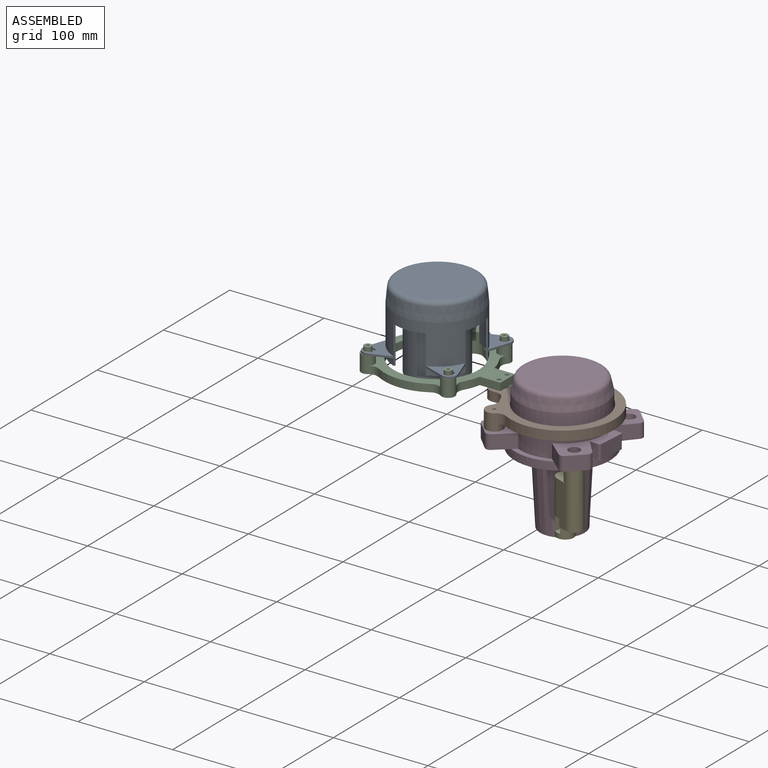
[diagram: assembled view]
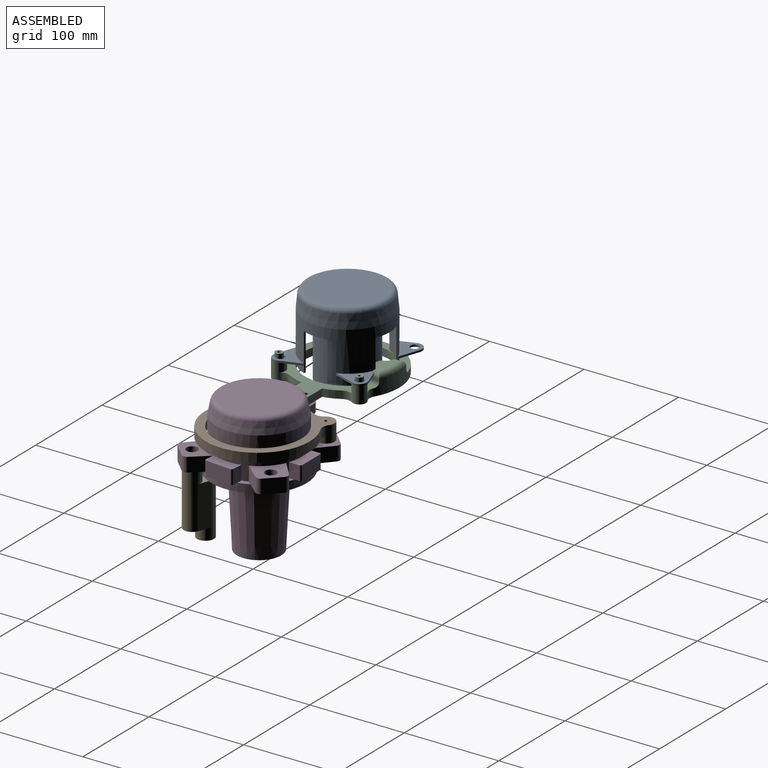
[diagram: assembled view, second angle]
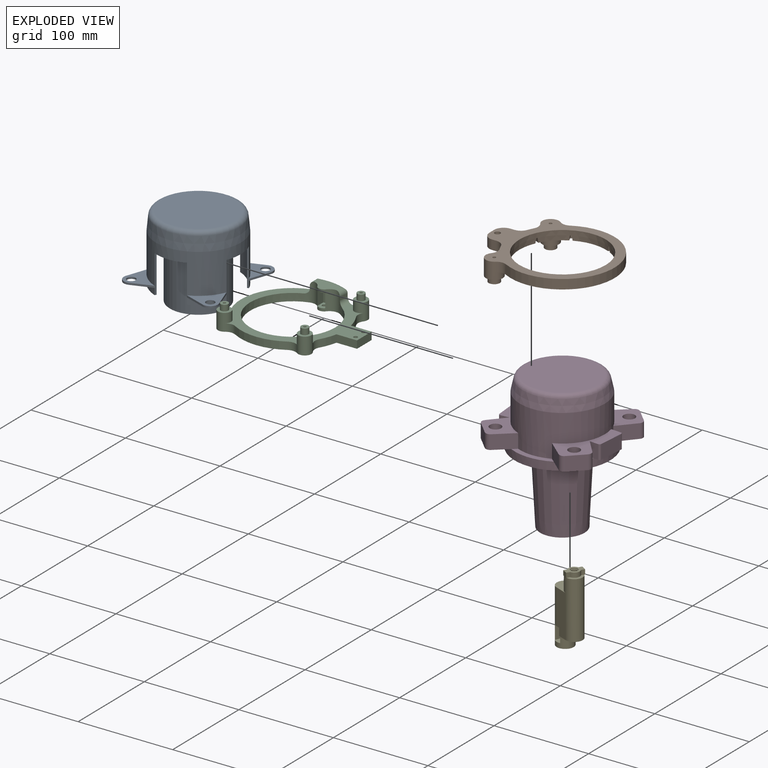
[diagram: exploded view]
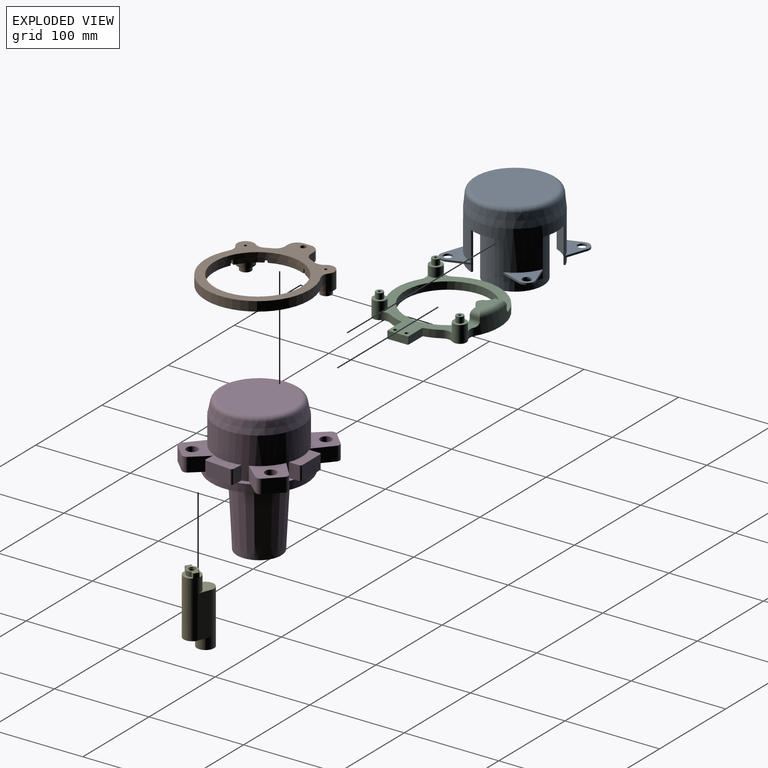
[diagram: exploded view, second angle]
ASSEMBLY  parts=5 mates=3
PART A: 51 faces, bbox 99.6x99.6x86 mm
  f0: cylinder r=45mm len=90mm, axis (0,0,-1), area 7522.3mm2, adj f4,f7,f12,f13,f16,f17,f19,f21
  f1: cylinder r=45mm len=24.51mm, axis (0,0,-1), area 249.1mm2, adj f19,f21,f22,f46
  f2: cylinder r=45mm len=24.51mm, axis (0,0,-1), area 249.1mm2, adj f23,f25,f26,f40
  f3: cylinder r=45mm len=24.51mm, axis (0,0,-1), area 249.1mm2, adj f16,f17,f18,f34
  f4: plane 90x90mm, normal (0,0,-1), area 3235.3mm2, adj f0,f9,f11,f12,f13,f15,f16,f17
  f5: cylinder r=45mm len=24.51mm, axis (0,0,-1), area 249.1mm2, adj f12,f13,f14,f28
  f6: plane 77.08x77.08mm, normal (0,0,1), area 4666.5mm2, adj f8
  f7: cone r=45mm half-angle=5.8deg, axis (0,0,-1), area 4055.8mm2, adj f0,f8
  f8: torus R=38.54mm, axis (0,0,1), area 1919.5mm2, adj f6,f7
  f9: cylinder r=30.16mm len=60.32mm, axis (0,0,1), area 10612mm2, adj f4,f10
  f10: plane 60.32x60.32mm, normal (0,0,-1), area 2857.7mm2, adj f9
  f11: cylinder r=43.71mm len=40mm, axis (0,0,1), area 1362.3mm2, adj f4,f12,f13,f14
  f12: plane 40x1.66mm, normal (-0.38,0.92,0), area 71.7mm2, adj f0,f4,f5,f11,f14,f31
  f13: plane 40x1.85mm, normal (0.92,-0.38,0), area 80mm2, adj f0,f4,f5,f11,f14,f29
  f14: plane 25.27x25.19mm, normal (0,0,-1), area 67.2mm2, adj f5,f11,f12,f13
  f15: cylinder r=43.71mm len=40mm, axis (0,0,1), area 1362.3mm2, adj f4,f16,f17,f18
  f16: plane 40x1.66mm, normal (-0.92,-0.38,0), area 71.7mm2, adj f0,f3,f4,f15,f18,f37
  f17: plane 40x1.85mm, normal (0.38,0.92,0), area 80mm2, adj f0,f3,f4,f15,f18,f35
  f18: plane 25.27x25.19mm, normal (0,0,-1), area 67.2mm2, adj f3,f15,f16,f17
  f19: plane 40x1.85mm, normal (-0.38,-0.92,0), area 80mm2, adj f0,f1,f4,f20,f22,f47
  f20: cylinder r=43.71mm len=40mm, axis (0,0,1), area 1362.3mm2, adj f4,f19,f21,f22
  f21: plane 40x1.66mm, normal (0.92,0.38,0), area 71.7mm2, adj f0,f1,f4,f20,f22,f49
  f22: plane 25.27x25.19mm, normal (0,0,-1), area 67.2mm2, adj f1,f19,f20,f21
  f23: plane 40x1.85mm, normal (-0.92,0.38,0), area 80mm2, adj f0,f2,f4,f24,f26,f41
  f24: cylinder r=43.71mm len=40mm, axis (0,0,1), area 1362.3mm2, adj f4,f23,f25,f26
  f25: plane 40x1.66mm, normal (0.38,-0.92,0), area 71.7mm2, adj f0,f2,f4,f24,f26,f43
  f26: plane 25.27x25.19mm, normal (0,0,-1), area 67.2mm2, adj f2,f23,f24,f25
  f27: plane 32.7x32.6mm, normal (0,0,1), area 417.5mm2, adj f0,f29,f30,f31,f32
  f28: plane 32.7x32.6mm, normal (0,0,-1), area 417.5mm2, adj f5,f29,f30,f31,f32
  f29: plane 21.94x7.73mm, normal (0.33,-0.94,0), area 46.5mm2, adj f13,f27,f28,f30
  f30: cylinder r=8mm len=10.66mm, axis (0,0,-1), area 35.9mm2, adj f27,f28,f29,f31
  f31: plane 22.08x7.65mm, normal (-0.94,0.33,0), area 46.7mm2, adj f12,f27,f28,f30
  f32: cylinder r=4.5mm len=9mm, axis (0,0,-1), area 56.5mm2, adj f27,f28
  f33: plane 32.7x32.6mm, normal (0,0,1), area 417.5mm2, adj f0,f35,f36,f37,f38
  f34: plane 32.7x32.6mm, normal (0,0,-1), area 417.5mm2, adj f3,f35,f36,f37,f38
  f35: plane 21.94x7.73mm, normal (0.94,0.33,0), area 46.5mm2, adj f17,f33,f34,f36
  f36: cylinder r=8mm len=10.66mm, axis (0,0,-1), area 35.9mm2, adj f33,f34,f35,f37
  f37: plane 22.08x7.65mm, normal (-0.33,-0.94,0), area 46.7mm2, adj f16,f33,f34,f36
  f38: cylinder r=4.5mm len=9mm, axis (0,0,-1), area 56.5mm2, adj f33,f34
  f39: plane 32.7x32.6mm, normal (0,0,1), area 417.5mm2, adj f0,f41,f42,f43,f44
  f40: plane 32.7x32.6mm, normal (0,0,-1), area 417.5mm2, adj f2,f41,f42,f43,f44
  f41: plane 21.94x7.73mm, normal (-0.33,0.94,0), area 46.5mm2, adj f23,f39,f40,f42
  f42: cylinder r=8mm len=10.66mm, axis (0,0,-1), area 35.9mm2, adj f39,f40,f41,f43
  f43: plane 22.08x7.65mm, normal (0.94,-0.33,0), area 46.7mm2, adj f25,f39,f40,f42
  f44: cylinder r=4.5mm len=9mm, axis (0,0,-1), area 56.5mm2, adj f39,f40
  f45: plane 32.7x32.6mm, normal (0,0,1), area 417.5mm2, adj f0,f47,f48,f49,f50
  f46: plane 32.7x32.6mm, normal (0,0,-1), area 417.5mm2, adj f1,f47,f48,f49,f50
  f47: plane 21.94x7.73mm, normal (-0.94,-0.33,0), area 46.5mm2, adj f19,f45,f46,f48
  f48: cylinder r=8mm len=10.66mm, axis (0,0,-1), area 35.9mm2, adj f45,f46,f47,f49
  f49: plane 22.08x7.65mm, normal (0.33,0.94,0), area 46.7mm2, adj f21,f45,f46,f48
  f50: cylinder r=4.5mm len=9mm, axis (0,0,-1), area 56.5mm2, adj f45,f46
PART B: 60 faces, bbox 130x110x23 mm
  f0: cone r=46mm half-angle=2deg, axis (0,0,-1), area 2796.3mm2, adj f1,f11,f20,f22,f23,f24,f26,f27
  f1: plane 129.97x110mm, normal (0,0,-1), area 3238.3mm2, adj f0,f2,f3,f4,f5,f6,f7,f8
  f2: plane 10x4.43mm, normal (0,-1,0), area 44.3mm2, adj f1,f11,f14,f15
  f3: cylinder r=55mm len=10mm, axis (0,0,-1), area 64.8mm2, adj f1,f11,f15,f16
  f4: cylinder r=9mm len=18mm, axis (0,0,-1), area 687mm2, adj f1,f11,f16,f17,f52
  f5: cylinder r=55mm len=110mm, axis (0,0,-1), area 2267.6mm2, adj f1,f11,f17,f18
  f6: cylinder r=9mm len=18mm, axis (0,0,-1), area 687mm2, adj f1,f11,f18,f19,f53
  f7: cylinder r=55mm len=10mm, axis (0,0,-1), area 64.8mm2, adj f1,f11,f12,f19
  f8: plane 10x4.43mm, normal (0,1,0), area 44.3mm2, adj f1,f11,f12,f13
  f9: plane 10x7.34mm, normal (-1,0,0), area 73.4mm2, adj f1,f11,f13,f14
  f10: cylinder r=3mm len=10mm, axis (0,0,-1), area 188.5mm2, adj f1,f11
  f11: plane 129.97x110mm, normal (0,0,1), area 3939.4mm2, adj f0,f2,f3,f4,f5,f6,f7,f8
  f12: cylinder r=10mm len=10mm, axis (0,0,-1), area 119.8mm2, adj f1,f7,f8,f11
  f13: cylinder r=10mm len=10mm, axis (0,0,-1), area 157.1mm2, adj f1,f8,f9,f11
  f14: cylinder r=10mm len=10mm, axis (0,0,1), area 157.1mm2, adj f1,f2,f9,f11
  f15: cylinder r=10mm len=10mm, axis (0,0,-1), area 119.8mm2, adj f1,f2,f3,f11
  f16: cylinder r=10mm len=10.96mm, axis (0,0,1), area 116.6mm2, adj f1,f3,f4,f11
  f17: cylinder r=10mm len=10.96mm, axis (0,0,1), area 116.6mm2, adj f1,f4,f5,f11
  f18: cylinder r=10mm len=10.96mm, axis (0,0,1), area 116.6mm2, adj f1,f5,f6,f11
  f19: cylinder r=10mm len=10.96mm, axis (0,0,1), area 116.6mm2, adj f1,f6,f7,f11
  f20: plane 5x4.44mm, normal (-0.43,0.89,-0.17), area 23.2mm2, adj f0,f1,f21,f23
  f21: plane 5x2.7mm, normal (0.9,0.44,0), area 10.6mm2, adj f1,f20,f22,f23
  f22: plane 5x4.58mm, normal (0.43,-0.89,-0.17), area 23.2mm2, adj f0,f1,f21,f23
  f23: plane 4.73x3.15mm, normal (0,0,-1), area 5.8mm2, adj f0,f20,f21,f22
  f24: plane 5x4.58mm, normal (0.43,0.89,-0.17), area 23.2mm2, adj f0,f1,f25,f27
  f25: plane 5x2.7mm, normal (0.9,-0.44,0), area 10.6mm2, adj f1,f24,f26,f27
  f26: plane 5x4.44mm, normal (-0.43,-0.89,-0.17), area 23.2mm2, adj f0,f1,f25,f27
  f27: plane 4.73x3.15mm, normal (0,0,-1), area 5.8mm2, adj f0,f24,f25,f26
  f28: plane 5x4.44mm, normal (0.89,0.43,-0.17), area 23.2mm2, adj f0,f1,f29,f31
  f29: plane 5x2.7mm, normal (0.44,-0.9,0), area 10.6mm2, adj f1,f28,f30,f31
  f30: plane 5x4.58mm, normal (-0.89,-0.43,-0.17), area 23.2mm2, adj f0,f1,f29,f31
  f31: plane 4.73x3.15mm, normal (0,0,-1), area 5.8mm2, adj f0,f28,f29,f30
  f32: plane 5x4.58mm, normal (0.89,-0.43,-0.17), area 23.2mm2, adj f0,f1,f33,f35
  f33: plane 5x2.7mm, normal (-0.44,-0.9,0), area 10.6mm2, adj f1,f32,f34,f35
  f34: plane 5x4.44mm, normal (-0.89,0.43,-0.17), area 23.2mm2, adj f0,f1,f33,f35
  f35: plane 4.73x3.15mm, normal (0,0,-1), area 5.8mm2, adj f0,f32,f33,f34
  f36: plane 5x4.44mm, normal (0.43,-0.89,-0.17), area 23.2mm2, adj f0,f1,f37,f39
  f37: plane 5x2.7mm, normal (-0.9,-0.44,0), area 10.6mm2, adj f1,f36,f38,f39
  f38: plane 5x4.58mm, normal (-0.43,0.89,-0.17), area 23.2mm2, adj f0,f1,f37,f39
  f39: plane 4.73x3.15mm, normal (0,0,-1), area 5.8mm2, adj f0,f36,f37,f38
  f40: plane 5x4.58mm, normal (-0.43,-0.89,-0.17), area 23.2mm2, adj f0,f1,f41,f43
  f41: plane 5x2.7mm, normal (-0.9,0.44,0), area 10.6mm2, adj f1,f40,f42,f43
  f42: plane 5x4.44mm, normal (0.43,0.89,-0.17), area 23.2mm2, adj f0,f1,f41,f43
  f43: plane 4.73x3.15mm, normal (0,0,-1), area 5.8mm2, adj f0,f40,f41,f42
  f44: plane 5x4.44mm, normal (-0.89,-0.43,-0.17), area 23.2mm2, adj f0,f1,f45,f47
  f45: plane 5x2.7mm, normal (-0.44,0.9,0), area 10.6mm2, adj f1,f44,f46,f47
  f46: plane 5x4.58mm, normal (0.89,0.43,-0.17), area 23.2mm2, adj f0,f1,f45,f47
  f47: plane 4.73x3.15mm, normal (0,0,-1), area 5.8mm2, adj f0,f44,f45,f46
  f48: plane 5x4.58mm, normal (-0.89,0.43,-0.17), area 23.2mm2, adj f0,f1,f49,f51
  f49: plane 5x2.7mm, normal (0.44,0.9,0), area 10.6mm2, adj f1,f48,f50,f51
  f50: plane 5x4.44mm, normal (0.89,-0.43,-0.17), area 23.2mm2, adj f0,f1,f49,f51
  f51: plane 4.73x3.15mm, normal (0,0,-1), area 5.8mm2, adj f0,f48,f49,f50
  f52: plane 18x18mm, normal (0,0,-1), area 145.1mm2, adj f4,f54
  f53: plane 18x18mm, normal (0,0,-1), area 145.1mm2, adj f6,f56
  f54: cylinder r=5.9mm len=11.8mm, axis (0,0,1), area 203.9mm2, adj f52,f55
  f55: plane 11.8x11.8mm, normal (0,0,-1), area 101.3mm2, adj f54,f59
  f56: cylinder r=5.9mm len=11.8mm, axis (0,0,1), area 203.9mm2, adj f53,f57
  f57: plane 11.8x11.8mm, normal (0,0,-1), area 101.3mm2, adj f56,f58
  f58: cylinder r=1.6mm len=23mm, axis (0,0,1), area 231.2mm2, adj f11,f57
  f59: cylinder r=1.6mm len=23mm, axis (0,0,1), area 231.2mm2, adj f11,f55
PART C: 53 faces, bbox 130.7x114.5x24.3 mm
  f0: cylinder r=55mm len=16.53mm, axis (0,0,-1), area 142mm2, adj f19,f20,f23,f52
  f1: cylinder r=6mm len=21mm, axis (0,0,-1), area 118.2mm2, adj f19,f27,f28,f31,f32,f33,f34,f36
  f2: cylinder r=2.1mm len=4.2mm, axis (0,0,-1), area 39.6mm2, adj f19,f34
  f3: cylinder r=4mm len=8mm, axis (0,0,1), area 158.3mm2, adj f4,f6
  f4: plane 8x8mm, normal (0,0,-1), area 43.2mm2, adj f3,f47
  f5: cylinder r=7mm len=18mm, axis (0,0,-1), area 597.9mm2, adj f6,f19,f20,f21,f22
  f6: plane 14x14mm, normal (0,0,-1), area 103.7mm2, adj f3,f5
  f7: cylinder r=4mm len=8mm, axis (0,0,1), area 158.3mm2, adj f8,f10
  f8: plane 8x8mm, normal (0,0,-1), area 43.2mm2, adj f7,f45
  f9: cylinder r=7mm len=18mm, axis (0,0,-1), area 597.9mm2, adj f10,f19,f20,f23,f24
  f10: plane 14x14mm, normal (0,0,-1), area 103.7mm2, adj f7,f9
  f11: cylinder r=4mm len=8mm, axis (0,0,1), area 158.3mm2, adj f12,f14
  f12: plane 8x8mm, normal (0,0,-1), area 43.2mm2, adj f11,f43
  f13: cylinder r=7mm len=18mm, axis (0,0,-1), area 597.9mm2, adj f14,f19,f20,f25,f26
  f14: plane 14x14mm, normal (0,0,-1), area 103.7mm2, adj f11,f13
  f15: cylinder r=45mm len=90mm, axis (0,0,-1), area 1985mm2, adj f19,f20,f27,f28,f37,f38
  f16: cylinder r=55mm len=16.53mm, axis (0,0,-1), area 142mm2, adj f19,f20,f22,f48
  f17: cylinder r=55mm len=55.06mm, axis (0,0,-1), area 461.3mm2, adj f19,f20,f24,f25
  f18: cylinder r=55mm len=82.53mm, axis (0,0,-1), area 1453.9mm2, adj f19,f20,f21,f26,f29,f30,f37,f38
  f19: plane 130.7x110mm, normal (0,0,1), area 4237mm2, adj f0,f1,f2,f5,f9,f13,f15,f16
  f20: plane 130.7x107.2mm, normal (0,0,-1), area 3166.4mm2, adj f0,f5,f9,f13,f15,f16,f17,f18
  f21: cylinder r=10mm len=10.87mm, axis (0,0,1), area 92.1mm2, adj f5,f18,f19,f20,f38
  f22: cylinder r=10mm len=10.87mm, axis (0,0,1), area 92mm2, adj f5,f16,f19,f20
  f23: cylinder r=10mm len=10.87mm, axis (0,0,1), area 92mm2, adj f0,f9,f19,f20
  f24: cylinder r=10mm len=10.87mm, axis (0,0,1), area 92mm2, adj f9,f17,f19,f20
  f25: cylinder r=10mm len=10.87mm, axis (0,0,1), area 92mm2, adj f13,f17,f19,f20
  f26: cylinder r=10mm len=10.87mm, axis (0,0,1), area 92mm2, adj f13,f18,f19,f20
  f27: cylinder r=10mm len=21mm, axis (0,0,-1), area 293.2mm2, adj f1,f15,f19,f30,f31,f41
  f28: cylinder r=10mm len=21mm, axis (0,0,-1), area 293.5mm2, adj f1,f15,f19,f29,f31,f39
  f29: plane 10.32x3mm, normal (1,0,0), area 31mm2, adj f18,f28,f37,f39
  f30: plane 10.96x3mm, normal (-1,-0.05,0), area 32.9mm2, adj f18,f27,f38,f41
  f31: plane 25.24x15.75mm, normal (0,0,-1), area 276.6mm2, adj f1,f27,f28,f39,f40,f41
  f32: plane 15x9.04mm, normal (1,0,0), area 135.5mm2, adj f1,f34,f35,f36
  f33: plane 15x9.04mm, normal (-1,0,0), area 135.5mm2, adj f1,f34,f35,f36
  f34: plane 10.75x8.4mm, normal (0,0,-1), area 72mm2, adj f1,f2,f32,f33,f35
  f35: plane 15x8.4mm, normal (0,-1,0), area 126mm2, adj f32,f33,f34,f36
  f36: plane 10.75x8.4mm, normal (0,0,1), area 85.8mm2, adj f1,f32,f33,f35
  f37: cylinder r=5mm len=12.07mm, axis (0,1,0), area 82mm2, adj f15,f18,f20,f29
  f38: cylinder r=5mm len=14.2mm, axis (0.05,-1,0), area 88mm2, adj f15,f18,f20,f21,f30
  f39: cylinder r=5mm len=10.32mm, axis (0,-1,0), area 67.7mm2, adj f28,f29,f31,f40
  f40: torus R=50mm, axis (0,0,1), area 254.5mm2, adj f18,f31,f39,f41
  f41: cylinder r=5mm len=11.22mm, axis (-0.05,1,0), area 71.8mm2, adj f27,f30,f31,f40
  f42: cone r=0mm half-angle=59deg, axis (0,0,-1), area 8.2mm2, adj f43
  f43: cylinder r=1.5mm len=20mm, axis (0,0,-1), area 188.5mm2, adj f12,f42
  f44: cone r=0mm half-angle=59deg, axis (0,0,-1), area 8.2mm2, adj f45
  f45: cylinder r=1.5mm len=20mm, axis (0,0,-1), area 188.5mm2, adj f8,f44
  f46: cone r=0mm half-angle=59deg, axis (0,0,-1), area 8.2mm2, adj f47
  f47: cylinder r=1.5mm len=20mm, axis (0,0,-1), area 188.5mm2, adj f4,f46
  f48: plane 21.81x8mm, normal (0,1,0), area 174.5mm2, adj f16,f19,f20,f49
  f49: plane 22x8mm, normal (-1,0,0), area 176mm2, adj f19,f20,f48,f52
  f50: cylinder r=2mm len=8mm, axis (0,0,1), area 100.5mm2, adj f19,f20
  f51: cylinder r=2mm len=8mm, axis (0,0,1), area 100.5mm2, adj f19,f20
  f52: plane 21.81x8mm, normal (0,-1,0), area 174.5mm2, adj f0,f19,f20,f49
PART D: 66 faces, bbox 115.8x115.8x145.2 mm
  f0: plane 6.99x6.79mm, normal (0,0,1), area 28mm2, adj f7,f11,f55,f64
  f1: plane 6.99x6.79mm, normal (0,0,1), area 28mm2, adj f7,f11,f48,f56
  f2: plane 4.1x3.22mm, normal (0,0,1), area 6.1mm2, adj f11,f24,f25
  f3: plane 11.23x7.96mm, normal (0,0,1), area 50.9mm2, adj f7,f11,f26,f60
  f4: plane 44.97x9.23mm, normal (0,0,1), area 229.7mm2, adj f7,f11,f23,f40
  f5: plane 11.23x7.96mm, normal (0,0,1), area 50.9mm2, adj f7,f11,f37,f49
  f6: plane 4.1x3.22mm, normal (0,0,1), area 6.1mm2, adj f11,f38,f39
  f7: cylinder r=45mm len=90mm, axis (0,0,-1), area 9084.9mm2, adj f0,f1,f3,f4,f5,f9,f22,f23
  f8: plane 74.95x74.95mm, normal (0,0,1), area 4412.1mm2, adj f10
  f9: cone r=45mm half-angle=12.3deg, axis (0,0,-1), area 3390.5mm2, adj f7,f10
  f10: torus R=37.48mm, axis (0,0,1), area 1719.3mm2, adj f8,f9
  f11: cylinder r=50.5mm len=101mm, axis (0,0,1), area 2728.8mm2, adj f0,f1,f2,f3,f4,f5,f6,f12
  f12: plane 101x101mm, normal (0,0,-1), area 5636mm2, adj f11,f13
  f13: cone r=27.5mm half-angle=3deg, axis (0,0,1), area 12256.7mm2, adj f12,f14
  f14: plane 46.99x46.99mm, normal (0,0,-1), area 1734.4mm2, adj f13
  f15: cylinder r=6mm len=15mm, axis (0,0,-1), area 565.5mm2, adj f22,f27
  f16: cylinder r=2mm len=15mm, axis (0,0,-1), area 47.1mm2, adj f17,f22,f26,f28
  f17: plane 26.9x15mm, normal (1,-0.09,0), area 405mm2, adj f16,f18,f22,f28
  f18: cylinder r=2mm len=15mm, axis (0,0,-1), area 47.1mm2, adj f17,f22,f25,f28
  f19: cylinder r=5mm len=15mm, axis (0,0,-1), area 112.5mm2, adj f20,f22,f24,f27
  f20: plane 15x13.92mm, normal (0.71,-0.71,0), area 295.3mm2, adj f19,f21,f22,f27
  f21: cylinder r=5mm len=15mm, axis (0,0,-1), area 112.5mm2, adj f20,f22,f23,f27
  f22: plane 69.68x39.99mm, normal (0,0,1), area 1023.5mm2, adj f7,f15,f16,f17,f18,f19,f20,f21
  f23: plane 17.79x15.43mm, normal (-0.66,-0.76,0), area 353.2mm2, adj f4,f7,f21,f22,f27
  f24: plane 16.46x15mm, normal (0.76,0.66,0), area 326.7mm2, adj f2,f19,f22,f25,f27
  f25: plane 15x9.26mm, normal (-0.09,-1,0), area 139.5mm2, adj f2,f18,f22,f24,f28
  f26: plane 15x10.96mm, normal (0.09,1,0), area 165mm2, adj f3,f7,f16,f22,f28
  f27: plane 35.44x35.44mm, normal (0,0,-1), area 497.7mm2, adj f11,f15,f19,f20,f21,f23,f24
  f28: plane 31.34x9.69mm, normal (0,0,-1), area 170.4mm2, adj f11,f16,f17,f18,f25,f26
  f29: cylinder r=6mm len=15mm, axis (0,0,-1), area 565.5mm2, adj f36,f42
  f30: cylinder r=5mm len=15mm, axis (0,0,-1), area 112.5mm2, adj f31,f36,f40,f42
  f31: plane 15x13.92mm, normal (-0.71,-0.71,0), area 295.3mm2, adj f30,f32,f36,f42
  f32: cylinder r=5mm len=15mm, axis (0,0,-1), area 112.5mm2, adj f31,f36,f39,f42
  f33: cylinder r=2mm len=15mm, axis (0,0,-1), area 47.1mm2, adj f34,f36,f38,f41
  f34: plane 26.9x15mm, normal (-1,-0.09,0), area 405mm2, adj f33,f35,f36,f41
  f35: cylinder r=2mm len=15mm, axis (0,0,-1), area 47.1mm2, adj f34,f36,f37,f41
  f36: plane 69.68x39.99mm, normal (0,0,1), area 1023.5mm2, adj f7,f29,f30,f31,f32,f33,f34,f35
  f37: plane 15x10.96mm, normal (-0.09,1,0), area 165mm2, adj f5,f7,f35,f36,f41
  f38: plane 15x9.26mm, normal (0.09,-1,0), area 139.5mm2, adj f6,f33,f36,f39,f41
  f39: plane 16.46x15mm, normal (-0.76,0.66,0), area 326.7mm2, adj f6,f32,f36,f38,f42
  f40: plane 17.79x15.43mm, normal (0.66,-0.76,0), area 353.2mm2, adj f4,f7,f30,f36,f42
  f41: plane 31.34x9.69mm, normal (0,0,-1), area 170.4mm2, adj f11,f33,f34,f35,f37,f38
  f42: plane 35.44x35.44mm, normal (0,0,-1), area 497.7mm2, adj f11,f29,f30,f31,f32,f39,f40
  f43: cylinder r=6mm len=15mm, axis (0,0,-1), area 565.5mm2, adj f47,f50
  f44: cylinder r=5mm len=15mm, axis (0,0,-1), area 112.5mm2, adj f45,f47,f49,f50
  f45: plane 15x13.92mm, normal (-0.71,0.71,0), area 295.3mm2, adj f44,f46,f47,f50
  f46: cylinder r=5mm len=15mm, axis (0,0,-1), area 112.5mm2, adj f45,f47,f48,f50
  f47: plane 39.99x39.99mm, normal (0,0,1), area 680.5mm2, adj f7,f43,f44,f45,f46,f48,f49
  f48: plane 17.79x15.43mm, normal (0.66,0.76,0), area 353.2mm2, adj f1,f7,f46,f47,f50
  f49: plane 17.79x15.43mm, normal (-0.76,-0.66,0), area 353.2mm2, adj f5,f7,f44,f47,f50
  f50: plane 35.44x35.44mm, normal (0,0,-1), area 497.7mm2, adj f11,f43,f44,f45,f46,f48,f49
  f51: cylinder r=2mm len=15mm, axis (0,0,-1), area 47.1mm2, adj f52,f54,f56,f57
  f52: plane 27x15mm, normal (0,1,0), area 405mm2, adj f51,f53,f54,f57
  f53: cylinder r=2mm len=15mm, axis (0,0,-1), area 47.1mm2, adj f52,f54,f55,f57
  f54: plane 31x13mm, normal (0,0,1), area 344mm2, adj f7,f51,f52,f53,f55,f56
  f55: plane 15x11mm, normal (1,0,0), area 165mm2, adj f0,f7,f53,f54,f57
  f56: plane 15x11mm, normal (-1,0,0), area 165mm2, adj f1,f7,f51,f54,f57
  f57: plane 31x7.18mm, normal (0,0,-1), area 170.4mm2, adj f11,f51,f52,f53,f55,f56
  f58: plane 39.99x39.99mm, normal (0,0,1), area 680.5mm2, adj f7,f60,f61,f62,f63,f64,f65
  f59: plane 35.44x35.44mm, normal (0,0,-1), area 497.7mm2, adj f11,f60,f61,f62,f63,f64,f65
  f60: plane 17.79x15.43mm, normal (0.76,-0.66,0), area 353.2mm2, adj f3,f7,f58,f59,f61
  f61: cylinder r=5mm len=15mm, axis (0,0,-1), area 112.5mm2, adj f58,f59,f60,f62
  f62: plane 15x13.92mm, normal (0.71,0.71,0), area 295.3mm2, adj f58,f59,f61,f63
  f63: cylinder r=5mm len=15mm, axis (0,0,-1), area 112.5mm2, adj f58,f59,f62,f64
  f64: plane 17.79x15.43mm, normal (-0.66,0.76,0), area 353.2mm2, adj f0,f7,f58,f59,f63
  f65: cylinder r=6mm len=15mm, axis (0,0,-1), area 565.5mm2, adj f58,f59
PART E: 34 faces, bbox 31x23.3x77 mm
  f0: plane 45x13mm, normal (-0.36,-0.93,0), area 594.8mm2, adj f1,f2,f9,f11,f27,f28
  f1: plane 22.4x21.5mm, normal (0,0,-1), area 249.5mm2, adj f0,f2,f9,f10,f27
  f2: cylinder r=9mm len=57mm, axis (0,0,1), area 1859.7mm2, adj f0,f1,f10,f11,f26,f27,f28,f29
  f3: cylinder r=2mm len=5mm, axis (0,0,-1), area 62.8mm2, adj f26,f30
  f4: cylinder r=6mm len=8.91mm, axis (0,0,1), area 62.8mm2, adj f5,f8,f15,f20
  f5: plane 14.72x10.8mm, normal (0,0,1), area 52.1mm2, adj f4,f9,f15,f20
  f6: plane 14.72x10.8mm, normal (0,0,1), area 52.1mm2, adj f7,f9,f13,f19
  f7: cylinder r=6mm len=8.91mm, axis (0,0,1), area 62.8mm2, adj f6,f8,f13,f19
  f8: plane 18.52x14.42mm, normal (0,0,1), area 108mm2, adj f4,f7,f12,f13,f15,f19,f20,f21
  f9: cylinder r=9mm len=60mm, axis (0,0,1), area 2120.6mm2, adj f0,f1,f5,f6,f10,f11,f14,f16
  f10: plane 45x13mm, normal (0.36,0.93,0), area 626.8mm2, adj f1,f2,f9,f11
  f11: plane 25.23x22.4mm, normal (0,0,1), area 250.7mm2, adj f0,f2,f9,f10
  f12: plane 5.14x5mm, normal (-0.52,-0.86,0), area 30mm2, adj f8,f13,f14,f15,f16
  f13: plane 5x3.26mm, normal (0.86,-0.52,0), area 19mm2, adj f6,f7,f8,f12,f14
  f14: plane 2.84x1.55mm, normal (0,0,-1), area 0.5mm2, adj f9,f12,f13
  f15: plane 5x3.26mm, normal (-0.86,0.52,0), area 19mm2, adj f4,f5,f8,f12,f16
  f16: plane 2.57x1.99mm, normal (0,0,-1), area 0.5mm2, adj f9,f12,f15
  f17: plane 2.57x1.99mm, normal (0,0,-1), area 0.5mm2, adj f9,f19,f21
  f18: plane 2.84x1.55mm, normal (0,0,-1), area 0.5mm2, adj f9,f20,f21
  f19: plane 5x3.26mm, normal (0.86,-0.52,0), area 19mm2, adj f6,f7,f8,f17,f21
  f20: plane 5x3.26mm, normal (-0.86,0.52,0), area 19mm2, adj f4,f5,f8,f18,f21
  f21: plane 5.14x5mm, normal (0.52,0.86,0), area 30mm2, adj f8,f17,f18,f19,f20
  f22: cylinder r=3mm len=29mm, axis (0,0,1), area 546.6mm2, adj f23,f25
  f23: plane 7.5x7.5mm, normal (0,0,1), area 15.9mm2, adj f22,f24
  f24: cylinder r=3.75mm len=7.5mm, axis (0,0,1), area 23.6mm2, adj f8,f23
  f25: cone r=0mm half-angle=59deg, axis (0,0,1), area 33mm2, adj f22
  f26: plane 18x18mm, normal (0,0,-1), area 241.9mm2, adj f2,f3
  f27: plane 15x13.07mm, normal (-0.93,0.36,0), area 203.4mm2, adj f0,f1,f2,f28,f30,f31
  f28: plane 15.94x12.16mm, normal (0,0,-1), area 98.2mm2, adj f0,f2,f27,f29,f31,f33
  f29: plane 15x12.19mm, normal (0.93,-0.36,0), area 195.9mm2, adj f2,f28,f30,f31
  f30: plane 15.1x12.16mm, normal (0,0,1), area 97mm2, adj f2,f3,f27,f29,f31
  f31: plane 15x7.47mm, normal (-0.36,-0.93,0), area 120mm2, adj f27,f28,f29,f30
  f32: cone r=0mm half-angle=59deg, axis (0,0,-1), area 14.7mm2, adj f33
  f33: cylinder r=2mm len=22mm, axis (0,0,-1), area 276.5mm2, adj f28,f32
PLACE A at identity
PLACE B t=(133.54,-1.5,-61.32)mm
PLACE C rot(axis=(0,1,0),180deg) t=(-0.79,-0.69,-33)mm
PLACE D t=(132.69,-0.65,-83.82)mm
PLACE E t=(131.84,0.2,-71.82)mm
MATE fastened C.f3 <-> A.f42  axis (0,0,1) through (41.71,41.81,-33)mm
MATE fastened B.f6 <-> D.f43  axis (0,0,-1) through (91.04,41,-68.82)mm
MATE fastened E.f4 <-> D.f15  axis (0,0,1) through (174.34,-42.3,-83.82)mm
